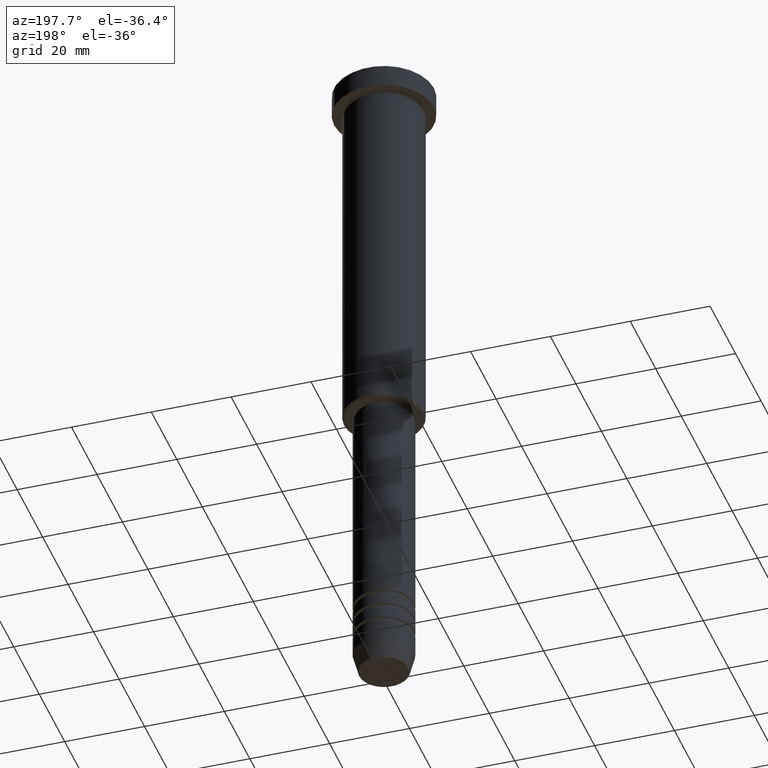
[diagram: clean part render]
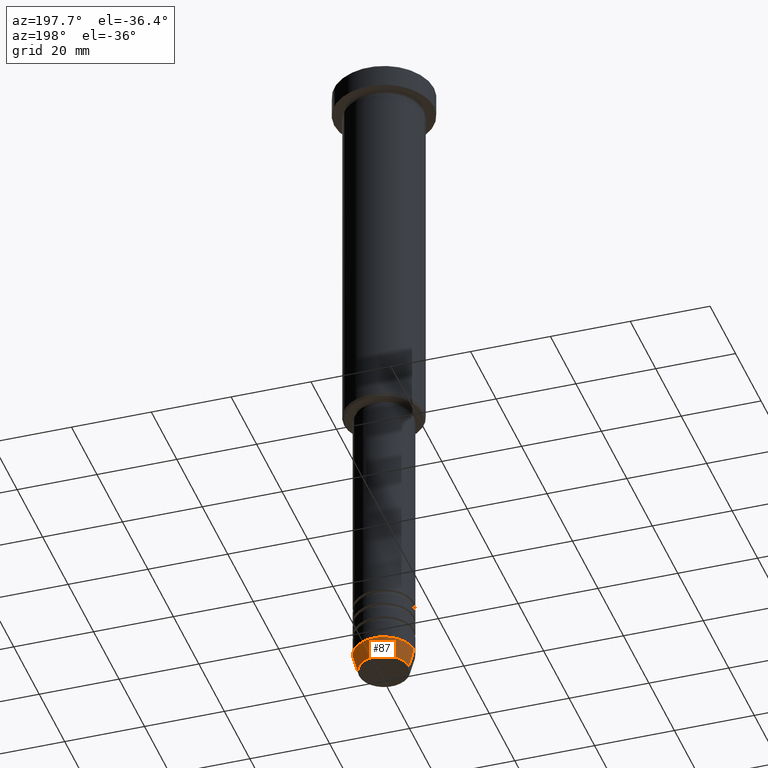
[diagram: same view with one face highlighted and labeled with its STEP entity id]
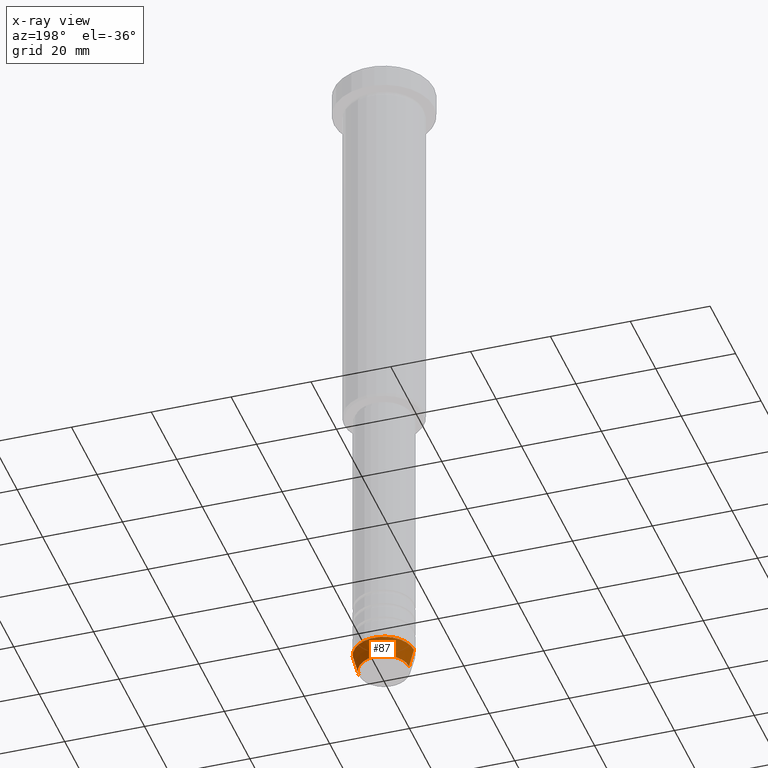
[diagram: x-ray of the same camera — body ghosted, the highlighted face saturated]
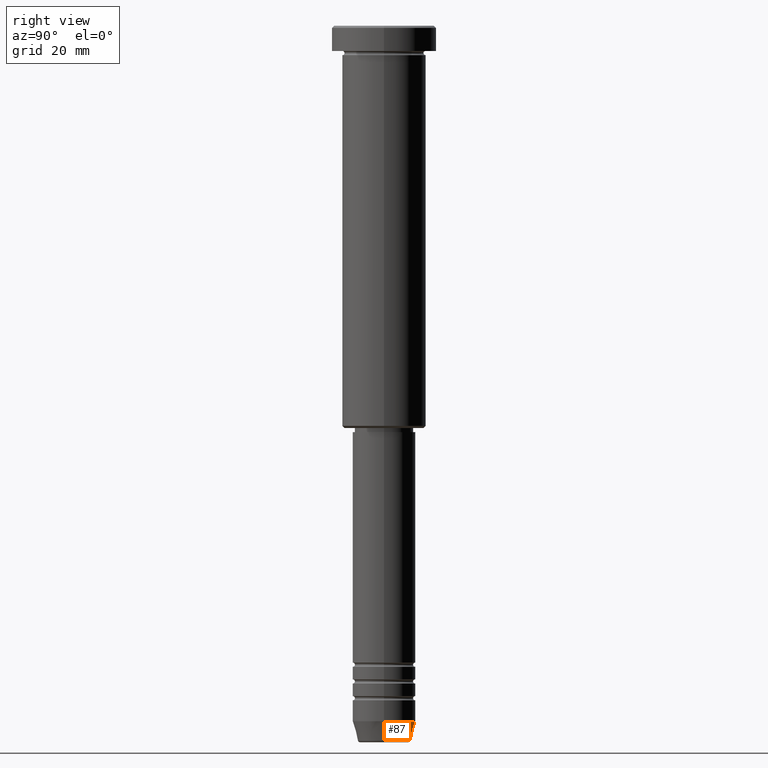
[diagram: same view with one face highlighted and labeled with its STEP entity id]
A machine part, auxiliary view. The second image highlights one B-rep face of the part: STEP entity #87.
The next image is the same camera in x-ray: the body ghosted, the highlighted face saturated — about 0% of this face is hidden behind the body in this view.
A second angle (right view) of the same face is appended — the face is thin or edge-on in the first view.
In plain terms, the highlighted conical surface has half-angle 15 deg.
Its self-contained STEP definition (entity closure, byte-faithful):
#10 = CIRCLE ( 'NONE', #438, 6.259553456999438659 ) ;
#60 = ORIENTED_EDGE ( 'NONE', *, *, #531, .T. ) ;
#87 = ADVANCED_FACE ( 'NONE', ( #947 ), #501, .T. ) ;
#115 = VERTEX_POINT ( 'NONE', #510 ) ;
#118 = VERTEX_POINT ( 'NONE', #984 ) ;
#122 = CARTESIAN_POINT ( 'NONE',  ( -7.500000000000000000, 9.184850993605147944E-16, -165.9999999999999716 ) ) ;
#128 = DIRECTION ( 'NONE',  ( 1.000000000000000000, 0.000000000000000000, 0.000000000000000000 ) ) ;
#134 = DIRECTION ( 'NONE',  ( -0.000000000000000000, -0.000000000000000000, 1.000000000000000000 ) ) ;
#152 = VECTOR ( 'NONE', #591, 1000.000000000000000 ) ;
#173 = DIRECTION ( 'NONE',  ( 1.000000000000000000, 0.000000000000000000, 0.000000000000000000 ) ) ;
#197 = VERTEX_POINT ( 'NONE', #422 ) ;
#222 = EDGE_CURVE ( 'NONE', #118, #197, #1146, .T. ) ;
#253 = ORIENTED_EDGE ( 'NONE', *, *, #864, .T. ) ;
#283 = CIRCLE ( 'NONE', #736, 7.500000000000000000 ) ;
#285 = ORIENTED_EDGE ( 'NONE', *, *, #222, .F. ) ;
#389 = DIRECTION ( 'NONE',  ( -0.000000000000000000, -0.000000000000000000, 1.000000000000000000 ) ) ;
#391 = EDGE_CURVE ( 'NONE', #197, #907, #283, .T. ) ;
#422 = CARTESIAN_POINT ( 'NONE',  ( 7.500000000000000000, 0.000000000000000000, -165.9999999999999716 ) ) ;
#438 = AXIS2_PLACEMENT_3D ( 'NONE', #1130, #867, #1135 ) ;
#447 = CARTESIAN_POINT ( 'NONE',  ( 7.500000000000000000, 0.000000000000000000, -165.9999999999999716 ) ) ;
#501 = CONICAL_SURFACE ( 'NONE', #742, 7.500000000000000000, 0.2617993877991500740 ) ;
#510 = CARTESIAN_POINT ( 'NONE',  ( -6.259553456999438659, 8.425296549405629486E-16, -170.6294095225512422 ) ) ;
#531 = EDGE_CURVE ( 'NONE', #118, #115, #10, .T. ) ;
#591 = DIRECTION ( 'NONE',  ( 0.2588190451025213501, 0.000000000000000000, 0.9659258262890680902 ) ) ;
#674 = LINE ( 'NONE', #122, #738 ) ;
#736 = AXIS2_PLACEMENT_3D ( 'NONE', #993, #389, #173 ) ;
#738 = VECTOR ( 'NONE', #749, 1000.000000000000000 ) ;
#742 = AXIS2_PLACEMENT_3D ( 'NONE', #875, #134, #128 ) ;
#749 = DIRECTION ( 'NONE',  ( -0.2588190451025213501, 3.169619151431772337E-17, 0.9659258262890680902 ) ) ;
#793 = EDGE_LOOP ( 'NONE', ( #60, #253, #831, #285 ) ) ;
#831 = ORIENTED_EDGE ( 'NONE', *, *, #391, .F. ) ;
#864 = EDGE_CURVE ( 'NONE', #115, #907, #674, .T. ) ;
#867 = DIRECTION ( 'NONE',  ( -0.000000000000000000, -0.000000000000000000, 1.000000000000000000 ) ) ;
#875 = CARTESIAN_POINT ( 'NONE',  ( 0.000000000000000000, 0.000000000000000000, -165.9999999999999716 ) ) ;
#907 = VERTEX_POINT ( 'NONE', #1015 ) ;
#947 = FACE_OUTER_BOUND ( 'NONE', #793, .T. ) ;
#984 = CARTESIAN_POINT ( 'NONE',  ( 6.259553456999438659, 0.000000000000000000, -170.6294095225512422 ) ) ;
#993 = CARTESIAN_POINT ( 'NONE',  ( 0.000000000000000000, 0.000000000000000000, -165.9999999999999716 ) ) ;
#1015 = CARTESIAN_POINT ( 'NONE',  ( -7.500000000000000000, 9.184850993605147944E-16, -165.9999999999999716 ) ) ;
#1130 = CARTESIAN_POINT ( 'NONE',  ( 0.000000000000000000, 0.000000000000000000, -170.6294095225512422 ) ) ;
#1135 = DIRECTION ( 'NONE',  ( 1.000000000000000000, 0.000000000000000000, 0.000000000000000000 ) ) ;
#1146 = LINE ( 'NONE', #447, #152 ) ;